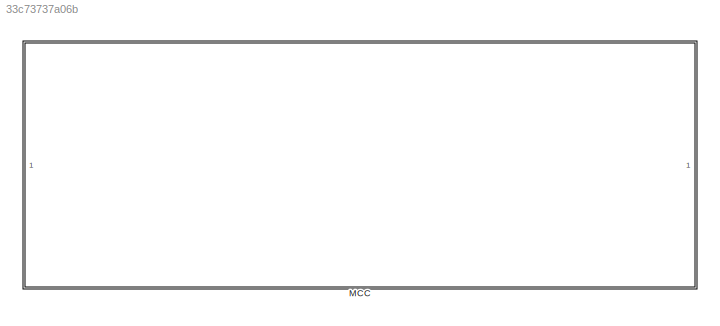
MODEL slx_33c73737a06b
KIND model
CONFIG AbsTol = auto
CONFIG EnableMultiTasking = off
CONFIG FixedStep = auto
CONFIG MaxStep = auto
CONFIG MinStep = auto
CONFIG RelTol = 1e-3
CONFIG SampleTimeConstraint = Unconstrained
CONFIG SolverName = VariableStepAuto
CONFIG StartTime = 0.0
CONFIG StopTime = 4
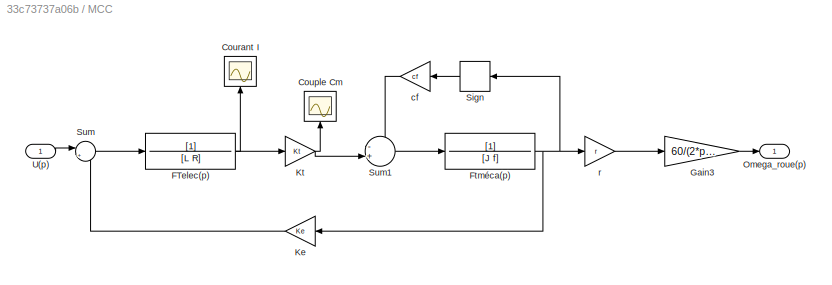
BLOCK [SubSystem] MCC
BLOCK [Scope] MCC/Couple Cm
  ActiveDisplayYMaximum = 1
  ActiveDisplayYMinimum = -1
  DataLoggingVariableName = ScopeData2
  Floating = off
  GraphicalSettings = {"Style":{"BackgroundColor":[0.12941176470588237,0.12941176470588237,0.12941176470588237],"AxesColor":[0.07058823529411765,0.07058823529411765,0.07058823529411765],"LabelsColor":[0.8509803921568627,0.8509803921568627,0.8509803921568627],"PreserveColors":false,"Visible":[true],"LineStyle":["-"],"LineWidth":[1.5],"BarWidth":[0.9],"LineColor":["auto"],"LineFaceAlpha":[1],"LineEdgeAlpha":[1],"Marker":...<+1896ch>
  MultipleDisplayCache = [{"MaxYLimMag":1,"MaxYLimReal":1,"MinYLimMag":0,"MinYLimReal":-1,"PlotAsMagnitudePhase":false,"ShowGrid":true,"ShowLegend":false,"Title":"%<SignalLabel>","YLabel":""}]
  NameLocation = left
  NumInputPorts = 1
  ScopeFrameLocation = window
  WasSavedAsWebScope = on
  WindowPosition = [573.000000,323.000000,560.000000,420.000000,]
BLOCK [Scope] MCC/Courant I
  ActiveDisplayYMaximum = 1
  ActiveDisplayYMinimum = -1
  DataLoggingVariableName = ScopeData1
  Floating = off
  GraphicalSettings = {"Style":{"BackgroundColor":[0.12941176470588237,0.12941176470588237,0.12941176470588237],"AxesColor":[0.07058823529411765,0.07058823529411765,0.07058823529411765],"LabelsColor":[0.8509803921568627,0.8509803921568627,0.8509803921568627],"PreserveColors":false,"Visible":[true],"LineStyle":["-"],"LineWidth":[1.5],"BarWidth":[0.9],"LineColor":["auto"],"LineFaceAlpha":[1],"LineEdgeAlpha":[1],"Marker":...<+1906ch>
  MultipleDisplayCache = [{"MaxYLimMag":1,"MaxYLimReal":1,"MinYLimMag":0,"MinYLimReal":-1,"PlotAsMagnitudePhase":false,"ShowGrid":true,"ShowLegend":false,"Title":"%<SignalLabel>","YLabel":""}]
  NameLocation = right
  NumInputPorts = 1
  ScopeFrameLocation = window
  WasSavedAsWebScope = on
  WindowPosition = [573.000000,323.000000,560.000000,420.000000,]
BLOCK [TransferFcn] MCC/FTelec(p)
  Denominator = [L R]
BLOCK [TransferFcn] MCC/Ftméca(p)
  Denominator = [J f]
BLOCK [Gain] MCC/Gain3
  Gain = 60/(2*pi)
BLOCK [Gain] MCC/Ke
  Gain = Ke
BLOCK [Gain] MCC/Kt
  Gain = Kt
BLOCK [Outport] MCC/Omega_roue(p)
BLOCK [Signum] MCC/Sign
BLOCK [Sum] MCC/Sum
  Inputs = |+-
BLOCK [Sum] MCC/Sum1
  Inputs = -+|
  NameLocation = top
BLOCK [Inport] MCC/U(p)
BLOCK [Gain] MCC/cf
  Gain = cf
BLOCK [Gain] MCC/r
  Gain = r
NET MCC/FTelec(p):1 -> MCC/Courant I:1, MCC/Kt:1
NET MCC/Ftméca(p):1 -> MCC/Ke:1, MCC/Sign:1, MCC/r:1
LINE MCC/Gain3:1 -> MCC/Omega_roue(p):1
LINE MCC/Ke:1 -> MCC/Sum:2
NET MCC/Kt:1 -> MCC/Couple Cm:1, MCC/Sum1:2
LINE MCC/Sign:1 -> MCC/cf:1
LINE MCC/Sum1:1 -> MCC/Ftméca(p):1
LINE MCC/Sum:1 -> MCC/FTelec(p):1
LINE MCC/U(p):1 -> MCC/Sum:1
LINE MCC/cf:1 -> MCC/Sum1:1
LINE MCC/r:1 -> MCC/Gain3:1
note: NET lines group one-source signal fan-out (src -> all destinations, sorted); 1:1 wires keep LINE
